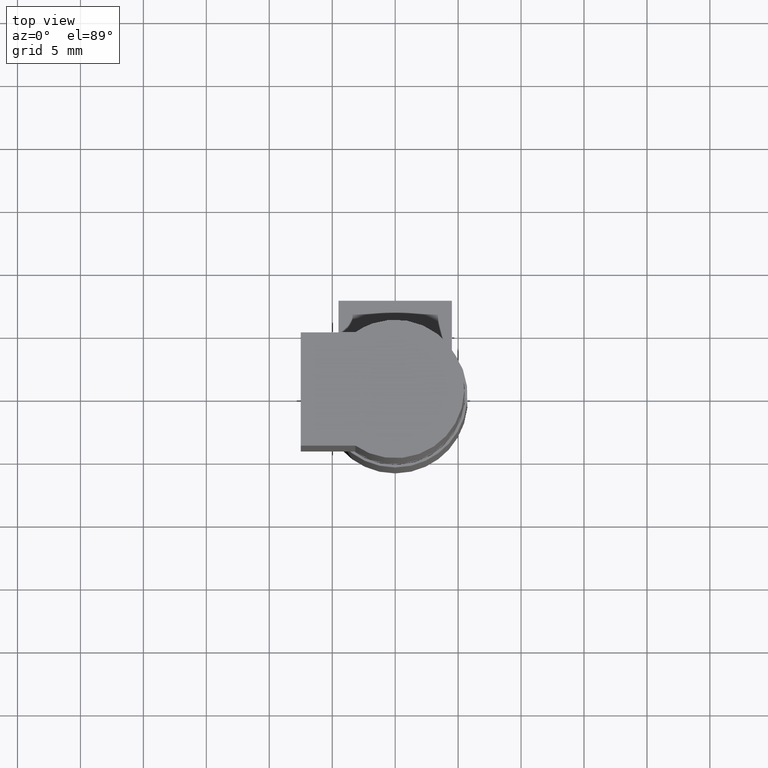
[diagram: clean part render]
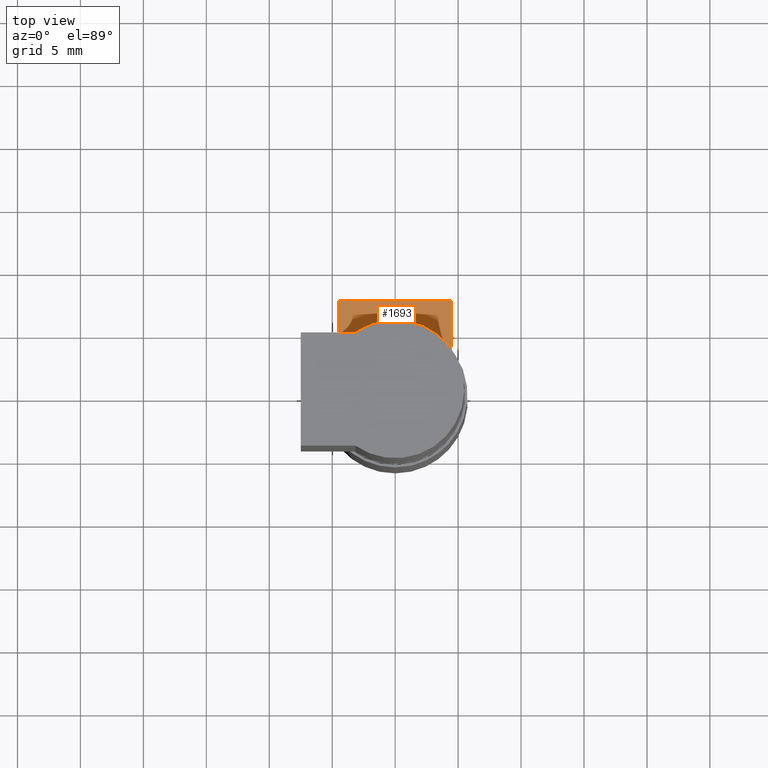
[diagram: same view with one face highlighted and labeled with its STEP entity id]
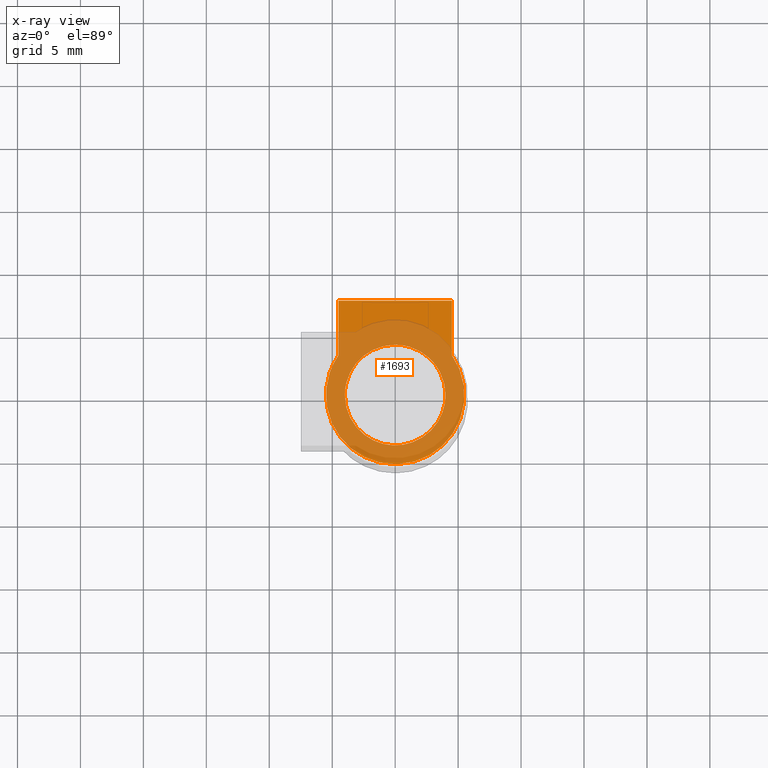
[diagram: x-ray of the same camera — body ghosted, the highlighted face saturated]
A machine part, top view. The second image highlights one B-rep face of the part: STEP entity #1693.
The next image is the same camera in x-ray: the body ghosted, the highlighted face saturated — about 71% of this face is hidden behind the body in this view.
In plain terms, the highlighted face is a freeform B-spline surface patch.
Its self-contained STEP definition (entity closure, byte-faithful):
#807=CARTESIAN_POINT('',(0.034906536174932,3.999892851010269,27.000001282428698));
#808=VERTEX_POINT('',#807);
#814=CARTESIAN_POINT('',(-4.000045160473915,0.0,27.000001282428698));
#815=VERTEX_POINT('',#814);
#816=CARTESIAN_POINT('',(0.034906536174932,3.999892851010269,27.000001282428702));
#817=CARTESIAN_POINT('',(0.017453600420760,4.000045160473915,27.000001282428698));
#818=CARTESIAN_POINT('',(0.0,4.000045160473915,27.000001282428698));
#819=CARTESIAN_POINT('',(-4.000045160473915,4.000045160473915,27.000001282428695));
#820=CARTESIAN_POINT('',(-4.000045160473915,0.0,27.000001282428698));
#828=(BOUNDED_CURVE()B_SPLINE_CURVE(2,(#816,#817,#818,#819,#820),.UNSPECIFIED.,.F.,.U.)B_SPLINE_CURVE_WITH_KNOTS((3,2,3),(0.248460105657354,0.250000000000000,0.500000000000000),.UNSPECIFIED.)CURVE()GEOMETRIC_REPRESENTATION_ITEM()RATIONAL_B_SPLINE_CURVE((0.996414028082681,0.998195901557399,1.0,0.707106781186548,1.0))REPRESENTATION_ITEM(''));
#829=EDGE_CURVE('',#808,#815,#828,.T.);
#831=CARTESIAN_POINT('',(4.000045160473915,0.0,27.000001282428698));
#832=VERTEX_POINT('',#831);
#833=CARTESIAN_POINT('',(-4.000045160473915,0.0,27.000001282428698));
#834=CARTESIAN_POINT('',(-4.000045160473915,-4.000045160473915,27.000001282428695));
#835=CARTESIAN_POINT('',(0.0,-4.000045160473915,27.000001282428698));
#836=CARTESIAN_POINT('',(4.000045160473915,-4.000045160473915,27.000001282428695));
#837=CARTESIAN_POINT('',(4.000045160473915,0.0,27.000001282428698));
#845=(BOUNDED_CURVE()B_SPLINE_CURVE(2,(#833,#834,#835,#836,#837),.UNSPECIFIED.,.F.,.U.)B_SPLINE_CURVE_WITH_KNOTS((3,2,3),(0.500000000000000,0.750000000000000,1.0),.UNSPECIFIED.)CURVE()GEOMETRIC_REPRESENTATION_ITEM()RATIONAL_B_SPLINE_CURVE((1.0,0.707106781186548,1.0,0.707106781186548,1.0))REPRESENTATION_ITEM(''));
#846=EDGE_CURVE('',#815,#832,#845,.T.);
#848=CARTESIAN_POINT('',(2.758587742560881,2.896645465434696,27.000001282428698));
#849=VERTEX_POINT('',#848);
#850=CARTESIAN_POINT('',(4.000045160473915,0.0,27.000001282428698));
#851=CARTESIAN_POINT('',(4.000045160473915,1.714357755816786,27.000001282428695));
#852=CARTESIAN_POINT('',(2.758587742560881,2.896645465434696,27.000001282428702));
#860=(BOUNDED_CURVE()B_SPLINE_CURVE(2,(#850,#851,#852),.UNSPECIFIED.,.F.,.U.)B_SPLINE_CURVE_WITH_KNOTS((3,3),(0.0,0.128683015016986),.UNSPECIFIED.)CURVE()GEOMETRIC_REPRESENTATION_ITEM()RATIONAL_B_SPLINE_CURVE((1.0,0.849238470100220,0.853680525929058))REPRESENTATION_ITEM(''));
#861=EDGE_CURVE('',#832,#849,#860,.T.);
#899=CARTESIAN_POINT('',(2.758587742560881,2.896645465434696,27.000001282428702));
#900=CARTESIAN_POINT('',(1.614602092562927,3.986107056671330,27.000001282428705));
#901=CARTESIAN_POINT('',(0.034906536174932,3.999892851010269,27.000001282428698));
#909=(BOUNDED_CURVE()B_SPLINE_CURVE(2,(#899,#900,#901),.UNSPECIFIED.,.F.,.U.)B_SPLINE_CURVE_WITH_KNOTS((3,3),(0.128683015016986,0.248460105657354),.UNSPECIFIED.)CURVE()GEOMETRIC_REPRESENTATION_ITEM()RATIONAL_B_SPLINE_CURVE((0.853680525929058,0.857815154913077,0.996414028082681))REPRESENTATION_ITEM(''));
#910=EDGE_CURVE('',#849,#808,#909,.T.);
#1606=CARTESIAN_POINT('',(4.500000088738590,7.500000356230890,27.000001282428752));
#1607=VERTEX_POINT('',#1606);
#1613=CARTESIAN_POINT('',(4.500000331288090,3.162327907544380,27.000001282428752));
#1614=VERTEX_POINT('',#1613);
#1615=CARTESIAN_POINT('',(4.500000088738590,7.500000356230890,27.000001282428752));
#1616=CARTESIAN_POINT('',(4.500000331288090,3.162327907544380,27.000001282428752));
#1617=QUASI_UNIFORM_CURVE('',1,(#1615,#1616),.UNSPECIFIED.,.F.,.U.);
#1618=EDGE_CURVE('',#1607,#1614,#1617,.T.);
#1634=CARTESIAN_POINT('',(-4.499999909455735,3.162328157364740,27.000001282428752));
#1635=VERTEX_POINT('',#1634);
#1641=CARTESIAN_POINT('',(-4.499999838738505,7.500000356230890,27.000001282428752));
#1642=VERTEX_POINT('',#1641);
#1643=CARTESIAN_POINT('',(-4.499999909455735,3.162328157364740,27.000001282428752));
#1644=CARTESIAN_POINT('',(-4.499999838738505,7.500000356230890,27.000001282428752));
#1645=QUASI_UNIFORM_CURVE('',1,(#1643,#1644),.UNSPECIFIED.,.F.,.U.);
#1646=EDGE_CURVE('',#1635,#1642,#1645,.T.);
#1656=CARTESIAN_POINT('',(-6.049442170722605,-6.149350510951168,27.000001282428698));
#1657=CARTESIAN_POINT('',(6.049442924176023,-6.149350510951168,27.000001282428698));
#1658=CARTESIAN_POINT('',(-6.049442170722605,8.149350722175301,27.000001282428698));
#1659=CARTESIAN_POINT('',(6.049442924176023,8.149350722175301,27.000001282428698));
#1660=B_SPLINE_SURFACE_WITH_KNOTS('',1,1,((#1656,#1658),(#1657,#1659)),.UNSPECIFIED.,.F.,.F.,.U.,(2,2),(2,2),(0.0,12.098885094898630),(0.0,14.298701233126470),.UNSPECIFIED.);
#1661=ORIENTED_EDGE('',*,*,#1646,.F.);
#1662=CARTESIAN_POINT('',(4.500000331288090,3.162327907544380,27.000001282428752));
#1663=CARTESIAN_POINT('',(7.317418869377793,-0.846888616480075,27.000001282428755));
#1664=CARTESIAN_POINT('',(3.658709395670331,-4.106567947685147,27.000001282428752));
#1665=CARTESIAN_POINT('',(-0.000000078037132,-7.366247278890221,27.000001282428755));
#1666=CARTESIAN_POINT('',(-3.658709372050851,-4.106567745994401,27.000001282428752));
#1667=CARTESIAN_POINT('',(-7.317418666064574,-0.846888213098577,27.000001282428755));
#1668=CARTESIAN_POINT('',(-4.499999909455736,3.162328157364739,27.000001282428752));
#1676=(BOUNDED_CURVE()B_SPLINE_CURVE(2,(#1662,#1663,#1664,#1665,#1666,#1667,#1668),.UNSPECIFIED.,.F.,.U.)B_SPLINE_CURVE_WITH_KNOTS((3,2,2,3),(0.0,0.333333333333333,0.666666666666667,1.0),.UNSPECIFIED.)CURVE()GEOMETRIC_REPRESENTATION_ITEM()RATIONAL_B_SPLINE_CURVE((1.0,0.746649506316509,1.0,0.746649506316509,1.0,0.746649506316509,1.0))REPRESENTATION_ITEM(''));
#1677=EDGE_CURVE('',#1614,#1635,#1676,.T.);
#1678=ORIENTED_EDGE('',*,*,#1677,.F.);
#1679=ORIENTED_EDGE('',*,*,#1618,.F.);
#1680=CARTESIAN_POINT('',(-4.499999838738505,7.500000356230890,27.000001282428752));
#1681=CARTESIAN_POINT('',(4.500000088738590,7.500000356230890,27.000001282428752));
#1682=QUASI_UNIFORM_CURVE('',1,(#1680,#1681),.UNSPECIFIED.,.F.,.U.);
#1683=EDGE_CURVE('',#1642,#1607,#1682,.T.);
#1684=ORIENTED_EDGE('',*,*,#1683,.F.);
#1685=EDGE_LOOP('',(#1661,#1678,#1679,#1684));
#1686=FACE_OUTER_BOUND('',#1685,.T.);
#1687=ORIENTED_EDGE('',*,*,#846,.F.);
#1688=ORIENTED_EDGE('',*,*,#829,.F.);
#1689=ORIENTED_EDGE('',*,*,#910,.F.);
#1690=ORIENTED_EDGE('',*,*,#861,.F.);
#1691=EDGE_LOOP('',(#1687,#1688,#1689,#1690));
#1692=FACE_BOUND('',#1691,.T.);
#1693=ADVANCED_FACE('',(#1686,#1692),#1660,.T.);